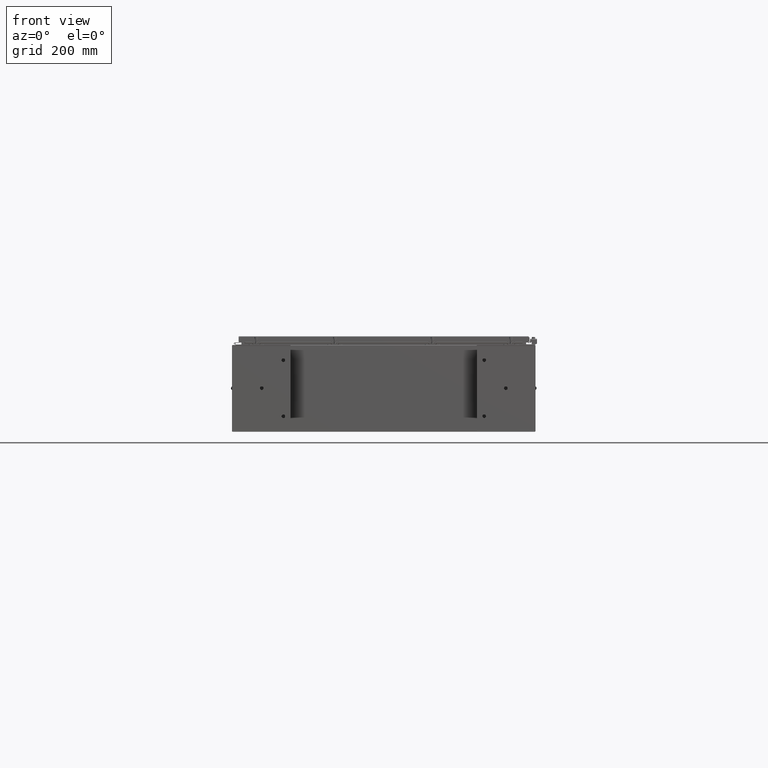
[diagram: clean part render]
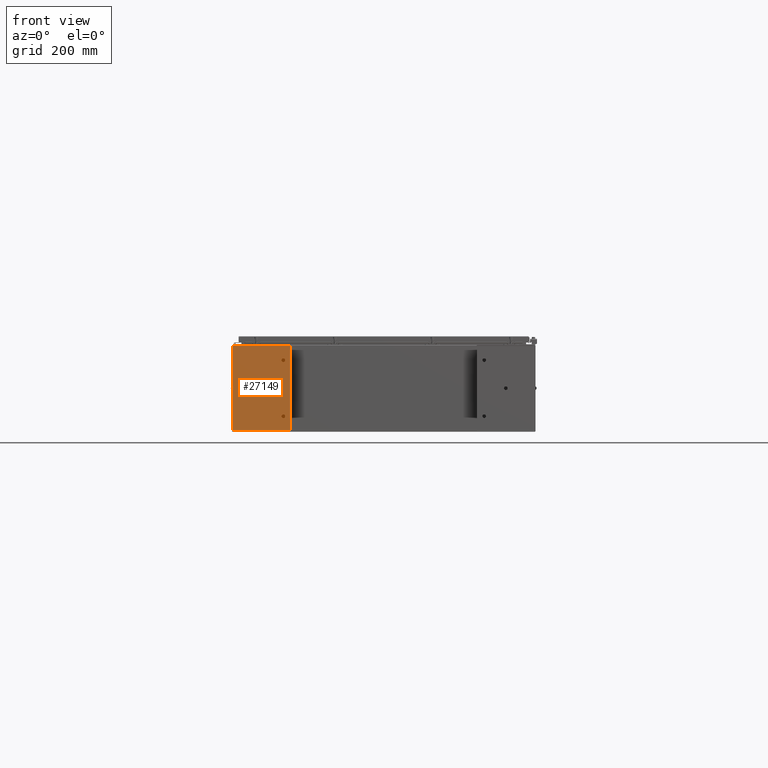
[diagram: same view with one face highlighted and labeled with its STEP entity id]
A machine part, front view. The second image highlights one B-rep face of the part: STEP entity #27149.
In plain terms, the highlighted planar face has unit normal (-0, -1, -0).
Its self-contained STEP definition (entity closure, byte-faithful):
#133 = DIRECTION ( 'NONE',  ( -1.000000000000000000, 0.0000000000000000000, 0.0000000000000000000 ) ) ;
#334 = VERTEX_POINT ( 'NONE', #69050 ) ;
#1131 = FACE_OUTER_BOUND ( 'NONE', #64134, .T. ) ;
#1283 = CARTESIAN_POINT ( 'NONE',  ( -5.879000000000000400, -4.000000000000000000, -0.1050000000000000000 ) ) ;
#3832 = ORIENTED_EDGE ( 'NONE', *, *, #57609, .F. ) ;
#4558 = DIRECTION ( 'NONE',  ( -1.000000000000000000, 0.0000000000000000000, 0.0000000000000000000 ) ) ;
#4870 = CARTESIAN_POINT ( 'NONE',  ( 5.878999999999997800, -4.000000000000000000, -0.1050000000000000000 ) ) ;
#5680 = ORIENTED_EDGE ( 'NONE', *, *, #6191, .F. ) ;
#6191 = EDGE_CURVE ( 'NONE', #7510, #44127, #66009, .T. ) ;
#6354 = DIRECTION ( 'NONE',  ( -1.000000000000000000, 0.0000000000000000000, 0.0000000000000000000 ) ) ;
#6680 = ORIENTED_EDGE ( 'NONE', *, *, #32740, .T. ) ;
#7068 = EDGE_CURVE ( 'NONE', #334, #20693, #69583, .T. ) ;
#7170 = ORIENTED_EDGE ( 'NONE', *, *, #20565, .F. ) ;
#7460 = ORIENTED_EDGE ( 'NONE', *, *, #62485, .T. ) ;
#7510 = VERTEX_POINT ( 'NONE', #53191 ) ;
#7899 = DIRECTION ( 'NONE',  ( 0.0000000000000000000, 0.0000000000000000000, -1.000000000000000000 ) ) ;
#8195 = VERTEX_POINT ( 'NONE', #45834 ) ;
#8933 = CARTESIAN_POINT ( 'NONE',  ( -5.879000000000000400, -4.000000000000000000, -0.1050000000000000000 ) ) ;
#10352 = EDGE_CURVE ( 'NONE', #53003, #36402, #49774, .T. ) ;
#16805 = FACE_BOUND ( 'NONE', #35318, .T. ) ;
#18758 = LINE ( 'NONE', #8933, #64282 ) ;
#19594 = EDGE_LOOP ( 'NONE', ( #38939, #6680 ) ) ;
#20565 = EDGE_CURVE ( 'NONE', #75017, #62024, #20900, .T. ) ;
#20693 = VERTEX_POINT ( 'NONE', #4870 ) ;
#20900 = LINE ( 'NONE', #22271, #50651 ) ;
#21823 = AXIS2_PLACEMENT_3D ( 'NONE', #43441, #7899, #49363 ) ;
#22271 = CARTESIAN_POINT ( 'NONE',  ( -5.879000000000000400, 4.000000000000000000, -0.1050000000000000000 ) ) ;
#22885 = DIRECTION ( 'NONE',  ( -1.000000000000000000, -0.0000000000000000000, -0.0000000000000000000 ) ) ;
#23444 = CARTESIAN_POINT ( 'NONE',  ( -0.2500000000000000000, 3.061616997868383000E-017, -0.1050000000000000000 ) ) ;
#24885 = DIRECTION ( 'NONE',  ( 0.0000000000000000000, 1.000000000000000000, 0.0000000000000000000 ) ) ;
#25778 = DIRECTION ( 'NONE',  ( -1.000000000000000000, 0.0000000000000000000, -0.0000000000000000000 ) ) ;
#26819 = DIRECTION ( 'NONE',  ( -0.0000000000000000000, -1.000000000000000000, -0.0000000000000000000 ) ) ;
#27149 = ADVANCED_FACE ( 'NONE', ( #1131, #32705, #16805, #62379 ), #66977, .T. ) ;
#27890 = AXIS2_PLACEMENT_3D ( 'NONE', #35238, #76633, #41229 ) ;
#28674 = CARTESIAN_POINT ( 'NONE',  ( 0.0000000000000000000, 0.0000000000000000000, -0.1050000000000000000 ) ) ;
#28821 = DIRECTION ( 'NONE',  ( 0.0000000000000000000, 0.0000000000000000000, -1.000000000000000000 ) ) ;
#29282 = CARTESIAN_POINT ( 'NONE',  ( 5.878999999999997800, 4.000000000000000000, -0.1050000000000000000 ) ) ;
#30084 = CIRCLE ( 'NONE', #27890, 0.2499999999999998100 ) ;
#30861 = DIRECTION ( 'NONE',  ( 1.000000000000000000, 0.0000000000000000000, 0.0000000000000000000 ) ) ;
#31798 = VECTOR ( 'NONE', #24885, 39.37007874015748100 ) ;
#32705 = FACE_BOUND ( 'NONE', #19594, .T. ) ;
#32740 = EDGE_CURVE ( 'NONE', #43480, #8195, #53194, .T. ) ;
#32924 = CIRCLE ( 'NONE', #68098, 0.2500000000000000000 ) ;
#34668 = DIRECTION ( 'NONE',  ( -1.000000000000000000, 0.0000000000000000000, 0.0000000000000000000 ) ) ;
#35238 = CARTESIAN_POINT ( 'NONE',  ( -3.879000000000000400, -2.999999999999999600, -0.1050000000000000000 ) ) ;
#35318 = EDGE_LOOP ( 'NONE', ( #7460, #66985 ) ) ;
#35728 = DIRECTION ( 'NONE',  ( -0.0000000000000000000, -0.0000000000000000000, 1.000000000000000000 ) ) ;
#36402 = VERTEX_POINT ( 'NONE', #72722 ) ;
#37010 = ORIENTED_EDGE ( 'NONE', *, *, #53496, .F. ) ;
#38939 = ORIENTED_EDGE ( 'NONE', *, *, #40176, .T. ) ;
#40176 = EDGE_CURVE ( 'NONE', #8195, #43480, #32924, .T. ) ;
#40607 = CARTESIAN_POINT ( 'NONE',  ( -4.129000000000000400, -2.999999999999999600, -0.1050000000000000000 ) ) ;
#41229 = DIRECTION ( 'NONE',  ( -1.000000000000000000, 0.0000000000000000000, 0.0000000000000000000 ) ) ;
#41510 = AXIS2_PLACEMENT_3D ( 'NONE', #47851, #28821, #6354 ) ;
#41915 = AXIS2_PLACEMENT_3D ( 'NONE', #28674, #70132, #34668 ) ;
#42987 = CIRCLE ( 'NONE', #21823, 0.2499999999999998100 ) ;
#43441 = CARTESIAN_POINT ( 'NONE',  ( 3.879000000000000400, -2.999999999999999600, -0.1050000000000000000 ) ) ;
#43451 = CARTESIAN_POINT ( 'NONE',  ( 5.878999999999997800, 4.000000000000000000, -0.1050000000000000000 ) ) ;
#43480 = VERTEX_POINT ( 'NONE', #23444 ) ;
#43683 = VECTOR ( 'NONE', #30861, 39.37007874015748100 ) ;
#44127 = VERTEX_POINT ( 'NONE', #60765 ) ;
#45834 = CARTESIAN_POINT ( 'NONE',  ( 0.2500000000000000000, 0.0000000000000000000, -0.1050000000000000000 ) ) ;
#47851 = CARTESIAN_POINT ( 'NONE',  ( 3.879000000000000400, -2.999999999999999600, -0.1050000000000000000 ) ) ;
#48539 = EDGE_CURVE ( 'NONE', #62024, #334, #18758, .T. ) ;
#48606 = DIRECTION ( 'NONE',  ( -0.0000000000000000000, -0.0000000000000000000, 1.000000000000000000 ) ) ;
#49363 = DIRECTION ( 'NONE',  ( -1.000000000000000000, 0.0000000000000000000, 0.0000000000000000000 ) ) ;
#49774 = CIRCLE ( 'NONE', #60065, 0.2499999999999998100 ) ;
#50651 = VECTOR ( 'NONE', #22885, 39.37007874015748100 ) ;
#51080 = ORIENTED_EDGE ( 'NONE', *, *, #7068, .F. ) ;
#51280 = LINE ( 'NONE', #60402, #31798 ) ;
#53003 = VERTEX_POINT ( 'NONE', #40607 ) ;
#53191 = CARTESIAN_POINT ( 'NONE',  ( 4.129000000000000400, -2.999999999999999600, -0.1050000000000000000 ) ) ;
#53194 = CIRCLE ( 'NONE', #41915, 0.2500000000000000000 ) ;
#53496 = EDGE_CURVE ( 'NONE', #44127, #7510, #42987, .T. ) ;
#57470 = CARTESIAN_POINT ( 'NONE',  ( -3.879000000000000400, -2.999999999999999600, -0.1050000000000000000 ) ) ;
#57609 = EDGE_CURVE ( 'NONE', #20693, #75017, #51280, .T. ) ;
#60065 = AXIS2_PLACEMENT_3D ( 'NONE', #57470, #48606, #4558 ) ;
#60402 = CARTESIAN_POINT ( 'NONE',  ( 5.878999999999997800, -4.000000000000000000, -0.1050000000000000000 ) ) ;
#60765 = CARTESIAN_POINT ( 'NONE',  ( 3.629000000000000400, -2.999999999999999600, -0.1050000000000000000 ) ) ;
#60951 = AXIS2_PLACEMENT_3D ( 'NONE', #43451, #61294, #25778 ) ;
#61294 = DIRECTION ( 'NONE',  ( 0.0000000000000000000, 0.0000000000000000000, -1.000000000000000000 ) ) ;
#62024 = VERTEX_POINT ( 'NONE', #70991 ) ;
#62379 = FACE_BOUND ( 'NONE', #67880, .T. ) ;
#62485 = EDGE_CURVE ( 'NONE', #36402, #53003, #30084, .T. ) ;
#64134 = EDGE_LOOP ( 'NONE', ( #3832, #51080, #64901, #7170 ) ) ;
#64282 = VECTOR ( 'NONE', #26819, 39.37007874015748100 ) ;
#64901 = ORIENTED_EDGE ( 'NONE', *, *, #48539, .F. ) ;
#66009 = CIRCLE ( 'NONE', #41510, 0.2499999999999998100 ) ;
#66977 = PLANE ( 'NONE',  #60951 ) ;
#66985 = ORIENTED_EDGE ( 'NONE', *, *, #10352, .T. ) ;
#67880 = EDGE_LOOP ( 'NONE', ( #5680, #37010 ) ) ;
#68098 = AXIS2_PLACEMENT_3D ( 'NONE', #71141, #35728, #133 ) ;
#69050 = CARTESIAN_POINT ( 'NONE',  ( -5.879000000000000400, -4.000000000000000000, -0.1050000000000000000 ) ) ;
#69583 = LINE ( 'NONE', #1283, #43683 ) ;
#70132 = DIRECTION ( 'NONE',  ( -0.0000000000000000000, -0.0000000000000000000, 1.000000000000000000 ) ) ;
#70991 = CARTESIAN_POINT ( 'NONE',  ( -5.879000000000000400, 4.000000000000000000, -0.1050000000000000000 ) ) ;
#71141 = CARTESIAN_POINT ( 'NONE',  ( 0.0000000000000000000, 0.0000000000000000000, -0.1050000000000000000 ) ) ;
#72722 = CARTESIAN_POINT ( 'NONE',  ( -3.629000000000000400, -2.999999999999999600, -0.1050000000000000000 ) ) ;
#75017 = VERTEX_POINT ( 'NONE', #29282 ) ;
#76633 = DIRECTION ( 'NONE',  ( -0.0000000000000000000, -0.0000000000000000000, 1.000000000000000000 ) ) ;